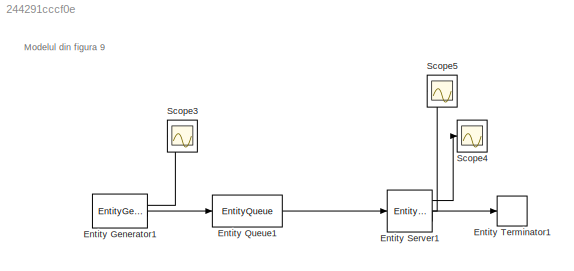
MODEL slx_244291cccf0e
KIND model
CONFIG AbsTol = auto
CONFIG FixedStep = auto
CONFIG MaxStep = auto
CONFIG MinStep = auto
CONFIG RelTol = 1e-3
CONFIG SampleTimeConstraint = Unconstrained
CONFIG Solver = VariableStepDiscrete
CONFIG SolverMode = Auto
CONFIG SolverName = VariableStepDiscrete
CONFIG StartTime = 0.0
CONFIG StopTime = 600
BLOCK [EntityGenerator] Entity Generator1
  AttributeInitialValue = 32
  AttributeName = ServiceTime
  EntityType = Structured
  EntityTypeName = Entity
  GenerateAction = persistent st\nif (isempty(st))\n    rng(462);\n    st = true;\nend\nentity.ServiceTime = 28 + 8 * rand;
  IntergenerationTimeAction = persistent init\nif (isempty(init))\n    rng(236);\n    init = true;\nend\ndt= 12 + rand * 12;
  NumberEntitiesDeparted = on
  OutputPortMap = o0,o3
  OutputPortMessageModes = n,m
  Ports = [0, 2]
  TimeSource = MATLAB action
BLOCK [EntityQueue] Entity Queue1
  InputPortMap = u0
  InputPortMessageModes = m
  OutputPortMap = o5
  OutputPortMessageModes = m
  Ports = [1, 1]
BLOCK [EntityServer] Entity Server1
  AverageWait = on
  Capacity = 2
  InputPortMap = u2
  InputPortMessageModes = m
  NumberEntitiesDeparted = on
  OutputPortMap = o0,o4,o9
  OutputPortMessageModes = n,n,m
  Ports = [1, 3]
  ServiceTimeAction = persistent init\nif (isempty(init))\n    rng(123);\n    init = true;\nend\ndt = 28 + 12 * rand
  ServiceTimeSource = Attribute
BLOCK [EntityTerminator] Entity Terminator1
  InputPortMap = u0
  InputPortMessageModes = m
  Ports = [1]
BLOCK [Scope] Scope3
  Ports = [1]
  ScopeSpecificationString = Simulink.scopes.TimeScopeBlockCfg('CurrentConfiguration', extmgr.ConfigurationSet(extmgr.Configuration('Core','General UI',true),extmgr.Configuration('Core','Source UI',true),extmgr.Configuration('Sources','WiredSimulink',true,'DataLoggingVariableName','ScopeData3'),extmgr.Configuration('Visuals','Time Domain',true,'SerializedDisplays',{struct('MinYLimReal','-3.25','MaxYLimReal','39.25','YLabelRea...<+1426ch>
BLOCK [Scope] Scope4
  Ports = [1]
  ScopeSpecificationString = Simulink.scopes.TimeScopeBlockCfg('CurrentConfiguration', extmgr.ConfigurationSet(extmgr.Configuration('Core','General UI',true),extmgr.Configuration('Core','Source UI',true),extmgr.Configuration('Sources','WiredSimulink',true,'DataLoggingVariableName','ScopeData4'),extmgr.Configuration('Visuals','Time Domain',true,'SerializedDisplays',{struct('MinYLimReal','-3.125','MaxYLimReal','38.125','YLabelR...<+1392ch>
BLOCK [Scope] Scope5
  Ports = [1]
  ScopeSpecificationString = Simulink.scopes.TimeScopeBlockCfg('CurrentConfiguration', extmgr.ConfigurationSet(extmgr.Configuration('Core','General UI',true),extmgr.Configuration('Core','Source UI',true),extmgr.Configuration('Sources','WiredSimulink',true,'DataLoggingVariableName','ScopeData5'),extmgr.Configuration('Visuals','Time Domain',true,'SerializedDisplays',{struct('MinYLimReal','31.39597','MaxYLimReal','34.47891','YLa...<+1406ch>
ANNOTATION (root): Modelul din figura 9
LINE Entity Generator1:1 -> Scope3:1
LINE Entity Generator1:2 -> Entity Queue1:1
LINE Entity Queue1:1 -> Entity Server1:1
LINE Entity Server1:1 -> Scope4:1
LINE Entity Server1:2 -> Scope5:1
LINE Entity Server1:3 -> Entity Terminator1:1
